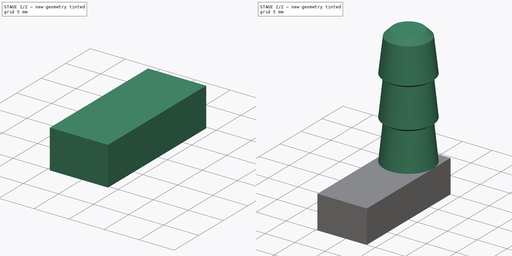
[diagram: build sequence overview — one tinted view per stage of 2, left to right]
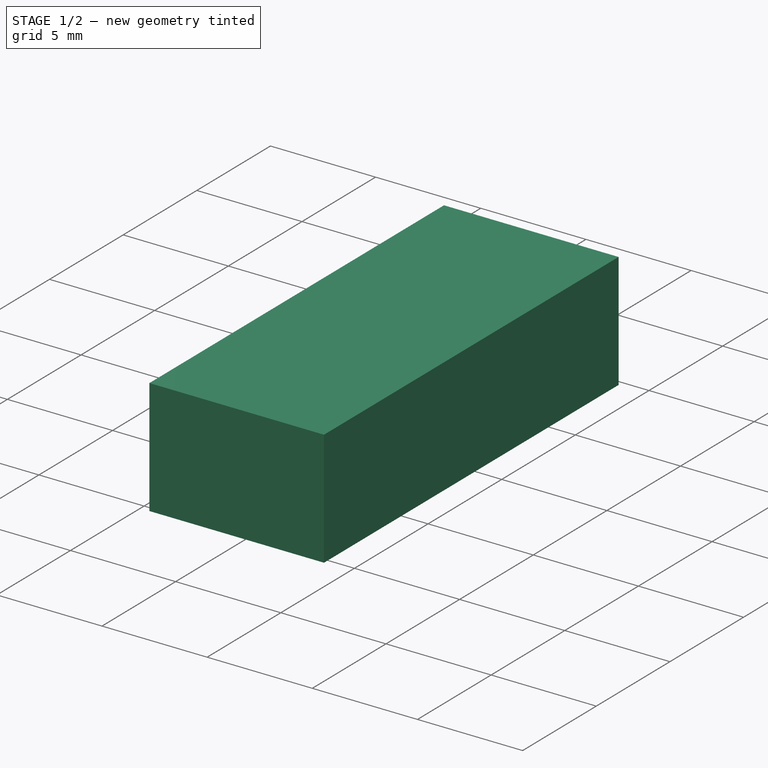
[diagram: stage 1 of 2 — iso view after this stage's code; geometry added in this stage tinted green]
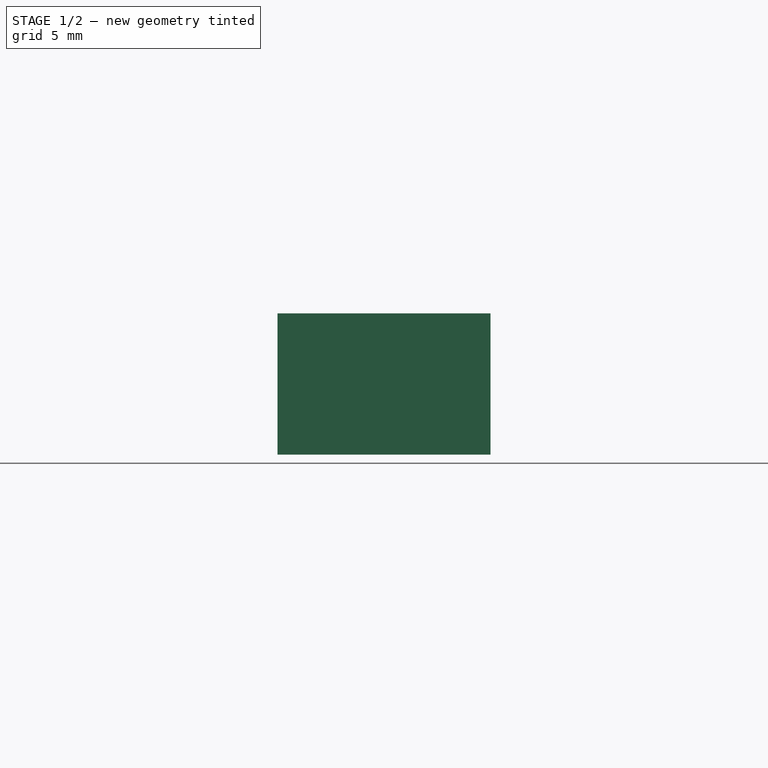
[diagram: stage 1 of 2 — front view after this stage's code; geometry added in this stage tinted green]
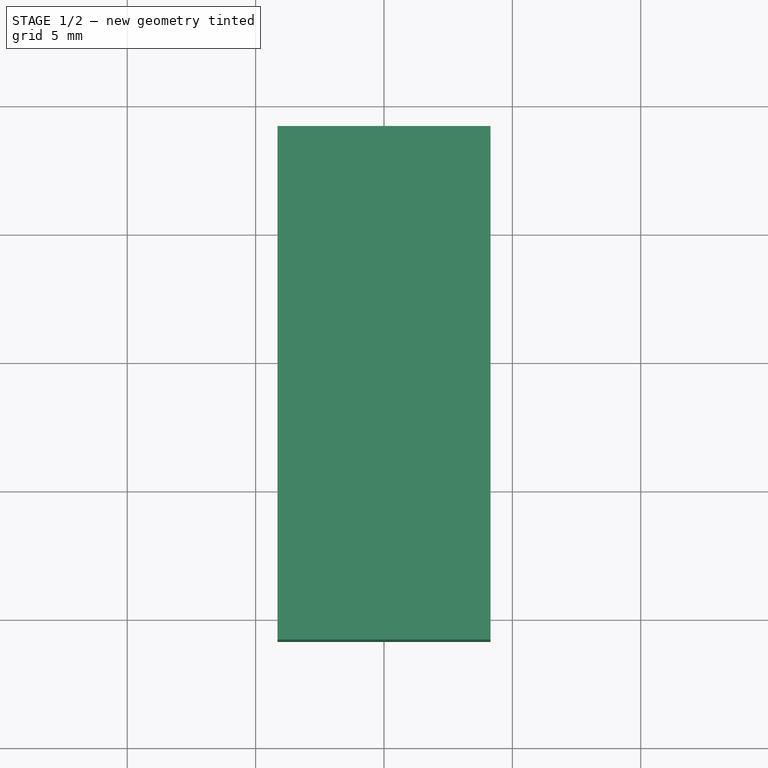
[diagram: stage 1 of 2 — top view after this stage's code; geometry added in this stage tinted green]
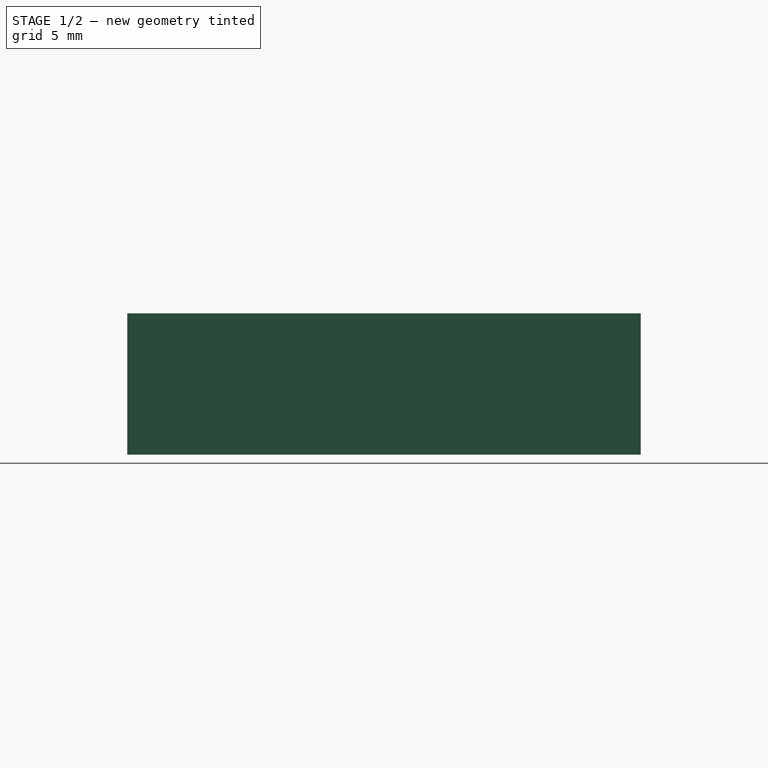
[diagram: stage 1 of 2 — right view after this stage's code; geometry added in this stage tinted green]
FCSTD DOCUMENT  (FreeCAD 0.21R33771 (Git))
Label: laser_cutter_honeycomb_peg
License: All rights reserved
LicenseURL: http://en.wikipedia.org/wiki/All_rights_reserved
objects: Sketcher::SketchObject×2, PartDesign::Pad×1, PartDesign::Revolution×1, PartDesign::Body×1
note: 7 computed .brp shape members not serialized (recipe doc carries the construction recipe); baked Part::Feature solids carry a one-line shape summary decoded from their .brp

FEATURE [Sketcher::SketchObject] Sketch002
  FullyConstrained = true
  MapMode = 5
  Support = -> [XY_Plane002]
  sketch-geometry (4):
    g0: LineSegment StartX=-4.15 StartY=4.15 StartZ=0 EndX=4.15 EndY=4.15 EndZ=0
    g1: LineSegment StartX=4.15 StartY=4.15 StartZ=0 EndX=4.15 EndY=-15.85 EndZ=0
    g2: LineSegment StartX=4.15 StartY=-15.85 StartZ=0 EndX=-4.15 EndY=-15.85 EndZ=0
    g3: LineSegment StartX=-4.15 StartY=-15.85 StartZ=0 EndX=-4.15 EndY=4.15 EndZ=0
  constraints (11):
    c: Coincident(g0,g1)
    c: Coincident(g1,g2)
    c: Coincident(g2,g3)
    c: Coincident(g3,g0)
    c: Horizontal(g2)
    c: Vertical(g1)
    c: Vertical(g3)
    c: DistanceX(g0,g0) = 8.3
    c: DistanceY(g1,g1) = 20
    c: Symmetric(g0,g0,g-2)
    c: DistanceY(g-1,g0) = 4.15
FEATURE [PartDesign::Pad] Pad
  Direction = (0,0,1)
  Length = 5.5
  Length2 = 10
  Profile = -> Sketch002
  ReferenceAxis = -> Sketch002 [N_Axis]
  Type = 0
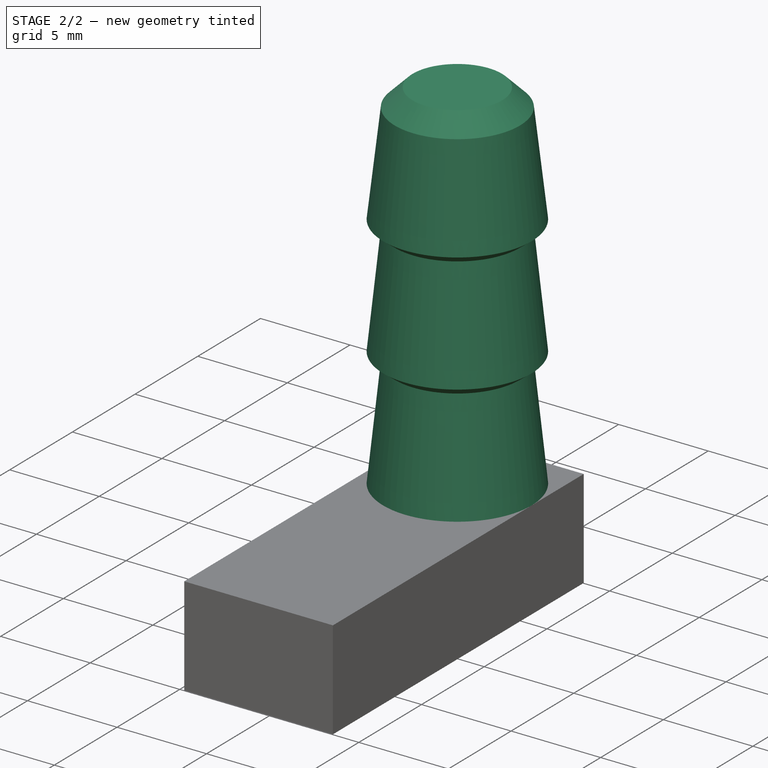
[diagram: stage 2 of 2 — iso view after this stage's code; geometry added in this stage tinted green]
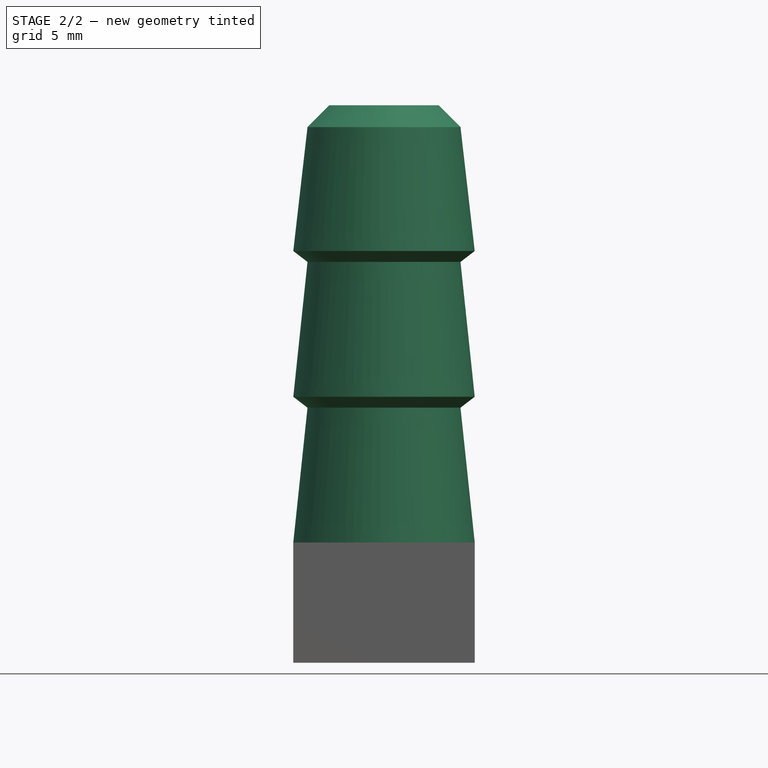
[diagram: stage 2 of 2 — front view after this stage's code; geometry added in this stage tinted green]
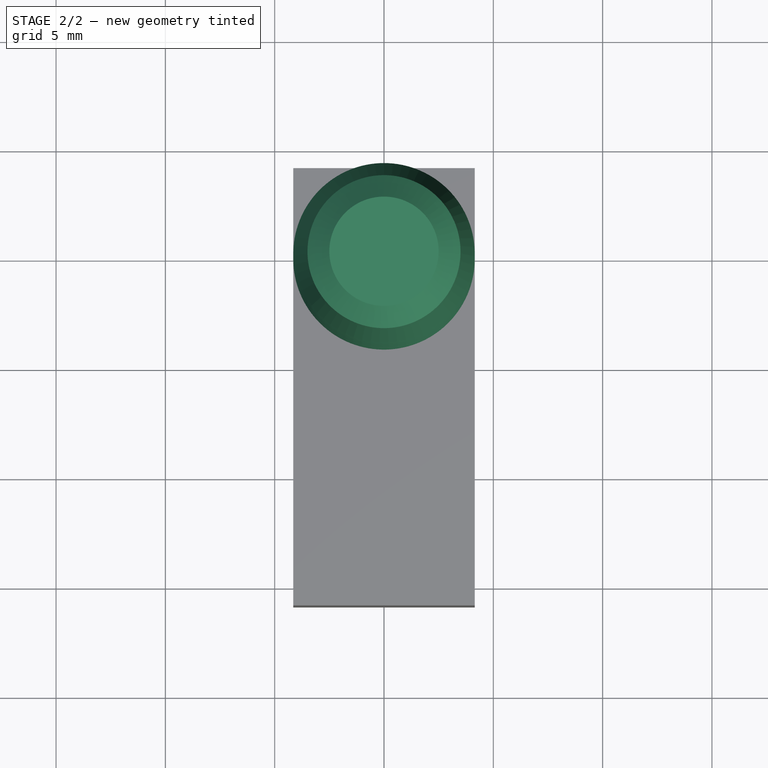
[diagram: stage 2 of 2 — top view after this stage's code; geometry added in this stage tinted green]
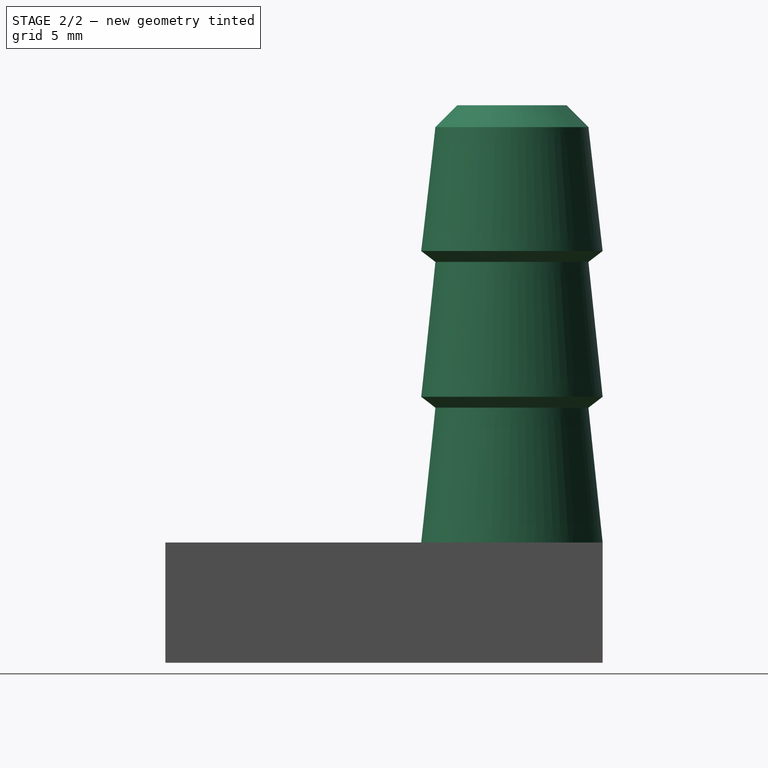
[diagram: stage 2 of 2 — right view after this stage's code; geometry added in this stage tinted green]
FEATURE [Sketcher::SketchObject] Sketch003
  FullyConstrained = true
  MapMode = 5
  Placement = pos=(0,0,0) rot=(0.57735,0.57735,0.57735;2.0944rad)
  Support = -> [YZ_Plane002]
  sketch-geometry (14):
    g0: LineSegment StartX=0 StartY=5.5 StartZ=0 EndX=4.15 EndY=5.5 EndZ=0
    g1: LineSegment StartX=4.15 StartY=5.5 StartZ=0 EndX=3.5 EndY=11.6667 EndZ=0
    g2: LineSegment StartX=3.5 StartY=11.6667 StartZ=0 EndX=4.15 EndY=12.1667 EndZ=0
    g3: LineSegment StartX=4.15 StartY=12.1667 StartZ=0 EndX=3.5 EndY=18.3333 EndZ=0
    g4: LineSegment StartX=3.5 StartY=18.3333 StartZ=0 EndX=4.15 EndY=18.8333 EndZ=0
    g5: LineSegment StartX=4.15 StartY=18.8333 StartZ=0 EndX=3.5 EndY=24.5 EndZ=0
    g6: LineSegment StartX=3.5 StartY=24.5 StartZ=0 EndX=2.5 EndY=25.5 EndZ=0
    g7: LineSegment StartX=2.5 StartY=25.5 StartZ=0 EndX=0 EndY=25.5 EndZ=0
    g8: LineSegment StartX=4.15 StartY=18.8333 StartZ=0 EndX=0 EndY=18.8333 EndZ=0
    g9: LineSegment StartX=3.5 StartY=18.3333 StartZ=0 EndX=0 EndY=18.3333 EndZ=0
    g10: LineSegment StartX=4.15 StartY=12.1667 StartZ=0 EndX=0 EndY=12.1667 EndZ=0
    g11: LineSegment StartX=3.5 StartY=11.6667 StartZ=0 EndX=0 EndY=11.6667 EndZ=0
    g12: LineSegment StartX=3.5 StartY=24.5 StartZ=0 EndX=0 EndY=24.5 EndZ=0
    g13: LineSegment StartX=0 StartY=25.5 StartZ=0 EndX=0 EndY=5.5 EndZ=0
  constraints (42):
    c: Coincident(g0,g1)
    c: Coincident(g1,g2)
    c: Coincident(g2,g3)
    c: Coincident(g3,g4)
    c: Coincident(g4,g5)
    c: Coincident(g5,g6)
    c: Coincident(g6,g7)
    c: DistanceY(g1,g2) = 0.5
    c: DistanceY(g3,g4) = 0.5
    c: DistanceY(g5,g6) = 1
    c: DistanceY(g0,g2) = 6.66667
    c: DistanceY(g2,g4) = 6.66667
    c: DistanceY(g4,g6) = 6.66667
    c: DistanceY(g-1,g0) = 5.5
    c: Coincident(g8,g4)
    c: PointOnObject(g8,g-2)
    c: Horizontal(g8)
    c: Horizontal(g9)
    c: Coincident(g10,g2)
    c: PointOnObject(g10,g-2)
    c: Horizontal(g10)
    c: Coincident(g11,g1)
    c: PointOnObject(g11,g-2)
    c: Horizontal(g11)
    c: PointOnObject(g9,g-2)
    c: Equal(g9,g11)
    c: Equal(g10,g8)
    c: Equal(g8,g0)
    c: PointOnObject(g0,g-2)
    c: DistanceX(g0,g0) = 4.15
    c: DistanceX(g11,g11) = 3.5
    c: PointOnObject(g7,g-2)
    c: DistanceX(g7,g7) = 2.5
    c: Coincident(g12,g5)
    c: PointOnObject(g12,g-2)
    c: Horizontal(g12)
    c: DistanceX(g12,g12) = 3.5
    c: Coincident(g3,g9)
    c: Coincident(g13,g7)
    c: Coincident(g13,g0)
    c: Horizontal(g7)
    c: Horizontal(g0)
FEATURE [PartDesign::Revolution] Revolution
  Angle = 360
  Axis = (-2e-16,3e-16,1)
  Base = (0,0,0)
  BaseFeature = -> Pad
  Profile = -> Sketch003
  ReferenceAxis = -> Sketch003 [V_Axis]
  Reversed = true
FEATURE [PartDesign::Body] Body002
  Group = -> [Sketch002,Pad,Sketch003,Revolution]
  Origin = -> Origin002
  Tip = -> Revolution
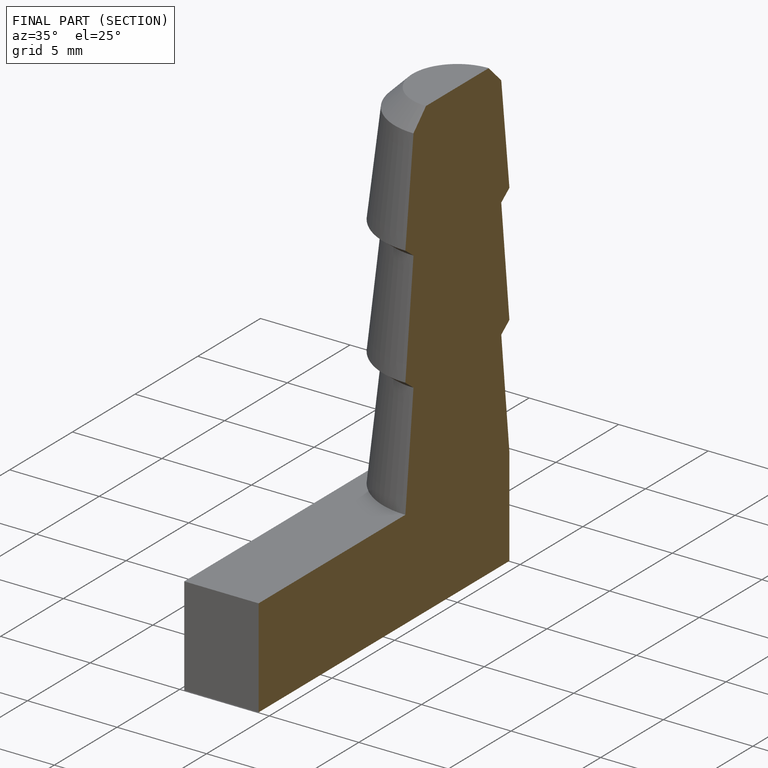
[diagram: finished part — half-section view (interior)]
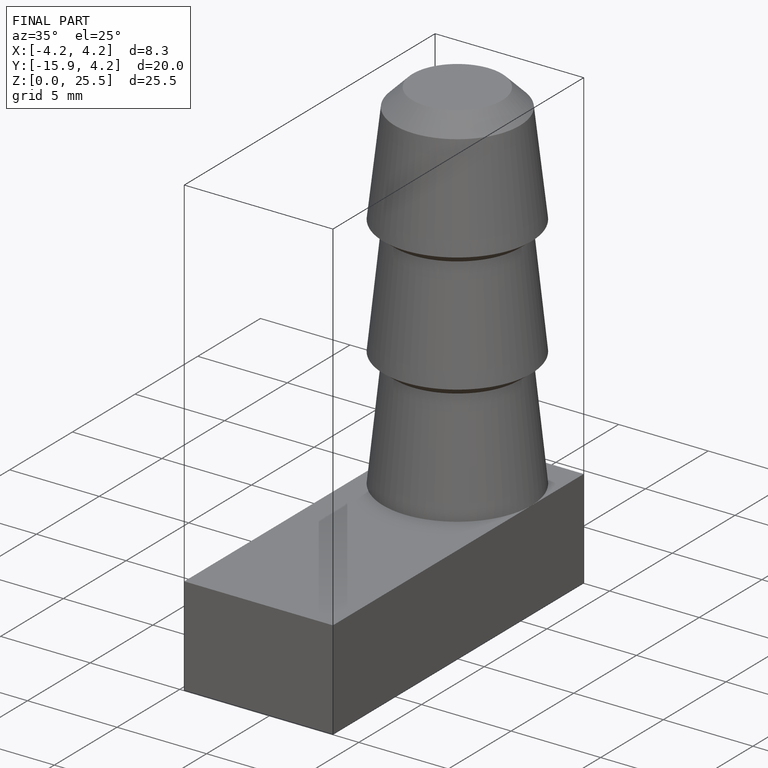
[diagram: finished part — iso view with bounding-box wireframe]
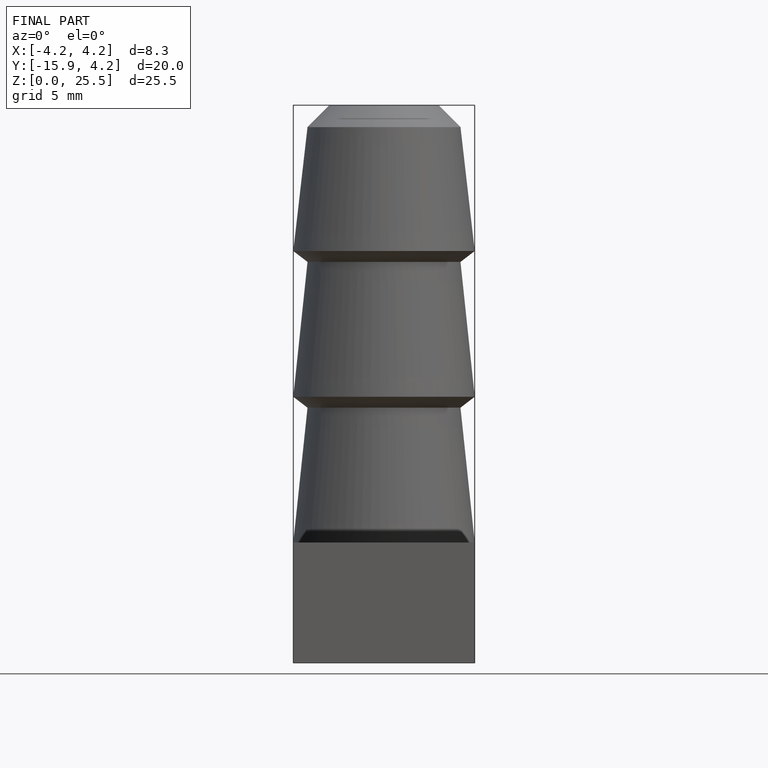
[diagram: finished part — front view with bounding-box wireframe]
